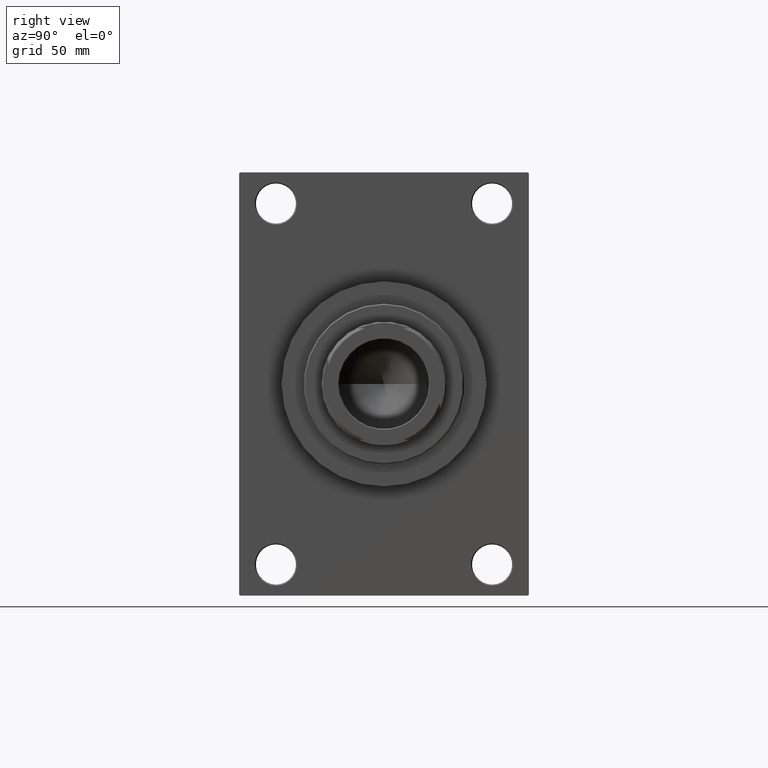
[diagram: clean part render]
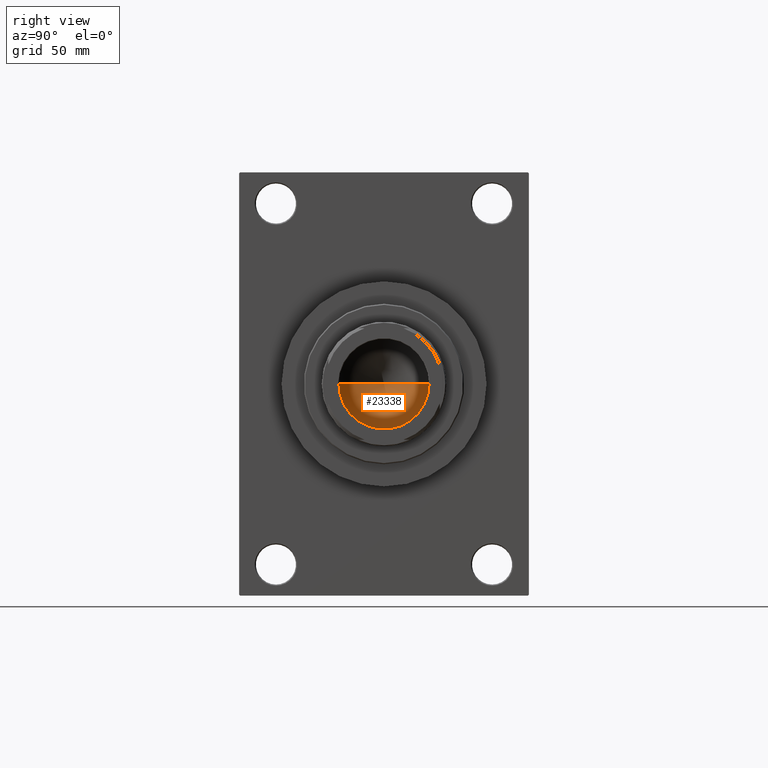
[diagram: same view with one face highlighted and labeled with its STEP entity id]
A machine part, right view. The second image highlights one B-rep face of the part: STEP entity #23338.
In plain terms, the highlighted conical surface has half-angle 59 deg.
Its self-contained STEP definition (entity closure, byte-faithful):
#1853 = CARTESIAN_POINT ( 'NONE',  ( 20.24999999999998934, 0.000000000000000000, 108.0000000000000142 ) ) ;
#2203 = EDGE_CURVE ( 'NONE', #27215, #15151, #11007, .T. ) ;
#3815 = VECTOR ( 'NONE', #43874, 1000.000000000000000 ) ;
#4305 = ORIENTED_EDGE ( 'NONE', *, *, #2203, .T. ) ;
#4649 = CARTESIAN_POINT ( 'NONE',  ( 0.000000000000000000, 0.000000000000000000, 108.0000000000000142 ) ) ;
#5157 = CARTESIAN_POINT ( 'NONE',  ( 0.000000000000000000, 0.000000000000000000, 108.0000000000000142 ) ) ;
#8680 = AXIS2_PLACEMENT_3D ( 'NONE', #4649, #34348, #19870 ) ;
#11007 = CIRCLE ( 'NONE', #8680, 20.24999999999998934 ) ;
#11660 = CARTESIAN_POINT ( 'NONE',  ( -20.24999999999998934, 2.479909768273389117E-15, 108.0000000000000142 ) ) ;
#11792 = EDGE_LOOP ( 'NONE', ( #15419, #35711, #4305 ) ) ;
#13214 = AXIS2_PLACEMENT_3D ( 'NONE', #5157, #19906, #38482 ) ;
#15151 = VERTEX_POINT ( 'NONE', #11660 ) ;
#15419 = ORIENTED_EDGE ( 'NONE', *, *, #45215, .F. ) ;
#18708 = CARTESIAN_POINT ( 'NONE',  ( 20.24999999999998934, 0.000000000000000000, 108.0000000000000142 ) ) ;
#18962 = FACE_OUTER_BOUND ( 'NONE', #11792, .T. ) ;
#19870 = DIRECTION ( 'NONE',  ( 1.000000000000000000, 0.000000000000000000, 0.000000000000000000 ) ) ;
#19906 = DIRECTION ( 'NONE',  ( -0.000000000000000000, -0.000000000000000000, 1.000000000000000000 ) ) ;
#21928 = CARTESIAN_POINT ( 'NONE',  ( -20.24999999999998934, 2.479909768273389117E-15, 108.0000000000000142 ) ) ;
#22328 = LINE ( 'NONE', #18708, #32634 ) ;
#23338 = ADVANCED_FACE ( 'NONE', ( #18962 ), #30944, .F. ) ;
#27215 = VERTEX_POINT ( 'NONE', #1853 ) ;
#30850 = EDGE_CURVE ( 'NONE', #45263, #27215, #22328, .T. ) ;
#30944 = CONICAL_SURFACE ( 'NONE', #13214, 20.24999999999998934, 1.029744258676652979 ) ;
#32634 = VECTOR ( 'NONE', #33434, 1000.000000000000000 ) ;
#33434 = DIRECTION ( 'NONE',  ( 0.8571673007021115565, 0.000000000000000000, 0.5150380749100554878 ) ) ;
#34348 = DIRECTION ( 'NONE',  ( -0.000000000000000000, -0.000000000000000000, 1.000000000000000000 ) ) ;
#35711 = ORIENTED_EDGE ( 'NONE', *, *, #30850, .T. ) ;
#36869 = CARTESIAN_POINT ( 'NONE',  ( -1.584115414415908206E-14, 0.000000000000000000, 95.83257246469189283 ) ) ;
#38482 = DIRECTION ( 'NONE',  ( 1.000000000000000000, 0.000000000000000000, 0.000000000000000000 ) ) ;
#40969 = LINE ( 'NONE', #21928, #3815 ) ;
#43874 = DIRECTION ( 'NONE',  ( -0.8571673007021115565, 1.049727191138617710E-16, 0.5150380749100554878 ) ) ;
#45215 = EDGE_CURVE ( 'NONE', #45263, #15151, #40969, .T. ) ;
#45263 = VERTEX_POINT ( 'NONE', #36869 ) ;